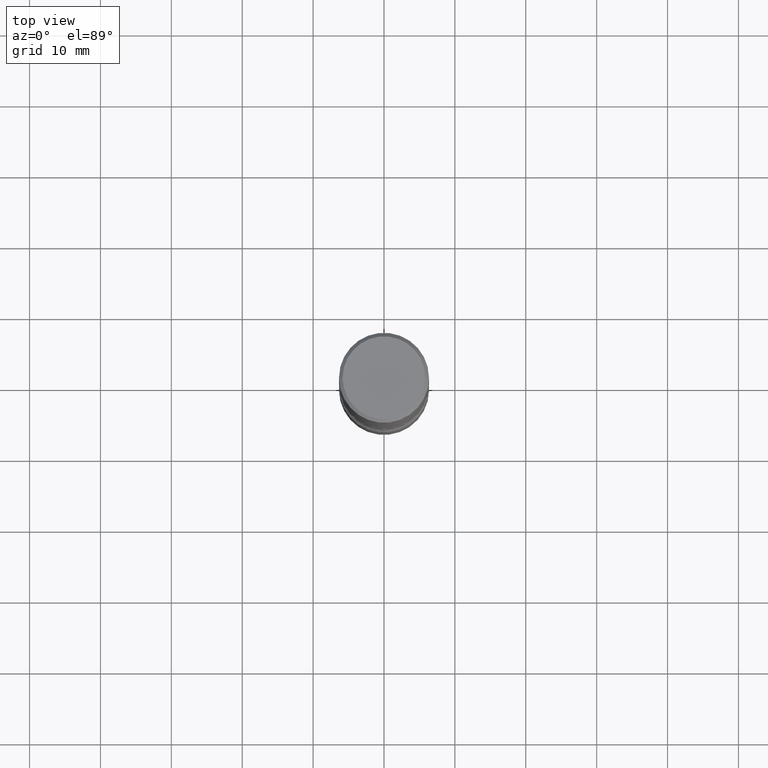
[diagram: clean part render]
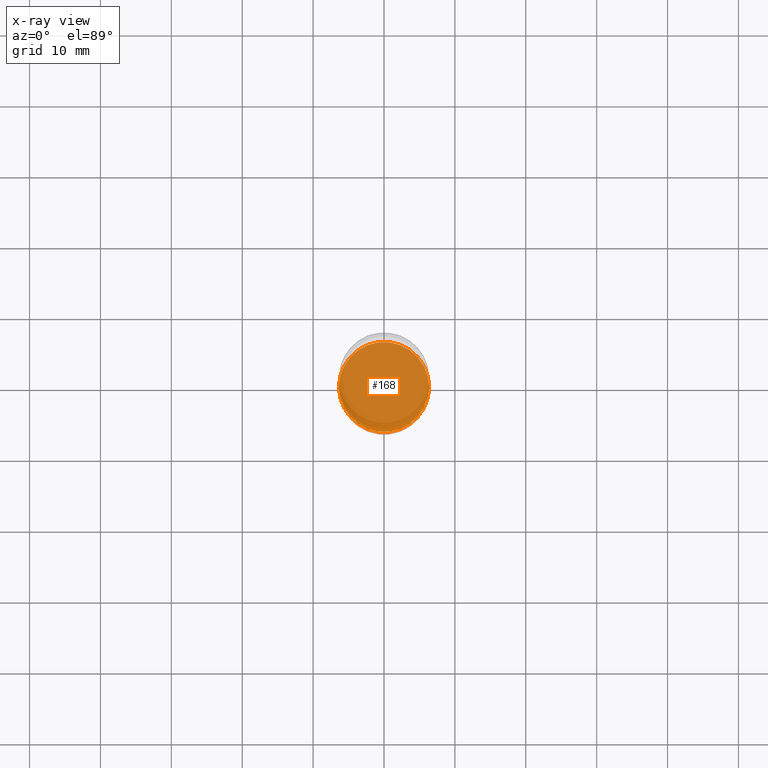
[diagram: x-ray — body ghosted, one internal face saturated and labeled with its STEP entity id]
A machine part, top view, then the same camera in x-ray: the body is ghosted and one INTERNAL B-rep face — a face not visible from any outside direction — is saturated and labeled: STEP entity #168.
In plain terms, the highlighted planar face has unit normal (0, -0, -1).
Its self-contained STEP definition (entity closure, byte-faithful):
#26 = AXIS2_PLACEMENT_3D ( 'NONE', #138, #108, #93 ) ;
#36 = DIRECTION ( 'NONE',  ( 1.000000000000000000, -6.982962677686270655E-15, 0.000000000000000000 ) ) ;
#42 = EDGE_CURVE ( 'NONE', #493, #207, #291, .T. ) ;
#88 = CARTESIAN_POINT ( 'NONE',  ( 7.336406418555409790E-29, -1.047444401652943635E-14, -3.000000000000000444 ) ) ;
#93 = DIRECTION ( 'NONE',  ( -1.000000000000000000, 6.982962677686265922E-15, -4.876176775795935793E-29 ) ) ;
#108 = DIRECTION ( 'NONE',  ( 2.438088387897960049E-29, -3.491481338843145188E-15, -1.000000000000000000 ) ) ;
#138 = CARTESIAN_POINT ( 'NONE',  ( 7.336406418555409790E-29, -1.047444401652943635E-14, -3.000000000000000444 ) ) ;
#147 = PLANE ( 'NONE',  #26 ) ;
#148 = ORIENTED_EDGE ( 'NONE', *, *, #42, .T. ) ;
#168 = ADVANCED_FACE ( 'NONE', ( #520 ), #147, .F. ) ;
#178 = AXIS2_PLACEMENT_3D ( 'NONE', #182, #522, #36 ) ;
#182 = CARTESIAN_POINT ( 'NONE',  ( 7.336406418555409790E-29, -1.047444401652943635E-14, -3.000000000000000444 ) ) ;
#207 = VERTEX_POINT ( 'NONE', #220 ) ;
#220 = CARTESIAN_POINT ( 'NONE',  ( 0.2500000000000002776, -1.222018468595100619E-14, -3.000000000000000444 ) ) ;
#267 = CARTESIAN_POINT ( 'NONE',  ( -0.2500000000000002776, -1.023433896622016898E-14, -3.000000000000000444 ) ) ;
#290 = ORIENTED_EDGE ( 'NONE', *, *, #524, .T. ) ;
#291 = CIRCLE ( 'NONE', #394, 0.2500000000000002776 ) ;
#340 = DIRECTION ( 'NONE',  ( 1.000000000000000000, -6.982962677686270655E-15, 0.000000000000000000 ) ) ;
#388 = EDGE_LOOP ( 'NONE', ( #290, #148 ) ) ;
#394 = AXIS2_PLACEMENT_3D ( 'NONE', #88, #429, #340 ) ;
#429 = DIRECTION ( 'NONE',  ( -2.445468806185136597E-29, 3.491481338843145583E-15, 1.000000000000000000 ) ) ;
#493 = VERTEX_POINT ( 'NONE', #267 ) ;
#520 = FACE_OUTER_BOUND ( 'NONE', #388, .T. ) ;
#522 = DIRECTION ( 'NONE',  ( -2.445468806185136597E-29, 3.491481338843145583E-15, 1.000000000000000000 ) ) ;
#524 = EDGE_CURVE ( 'NONE', #207, #493, #531, .T. ) ;
#531 = CIRCLE ( 'NONE', #178, 0.2500000000000002776 ) ;